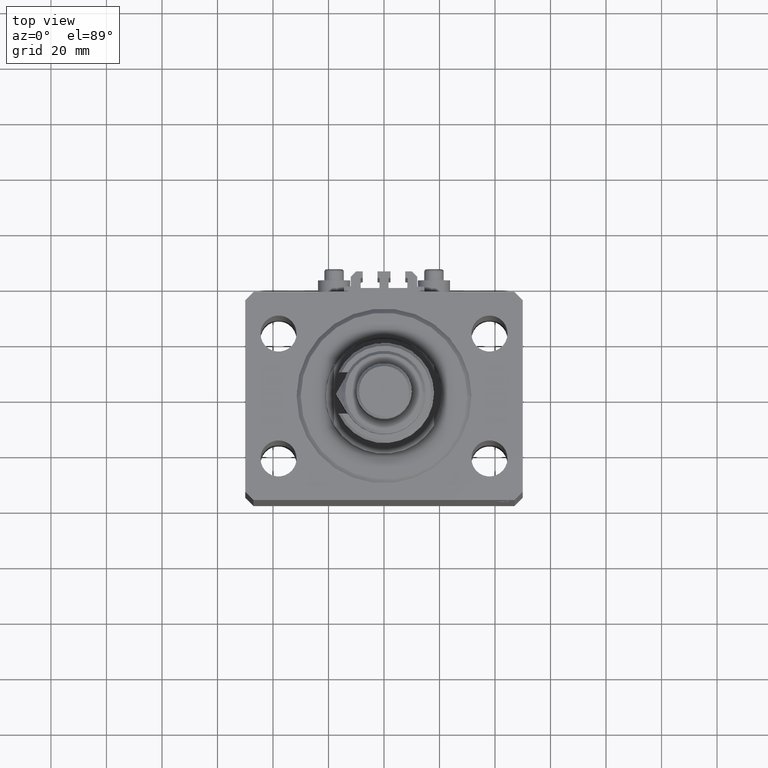
[diagram: clean part render]
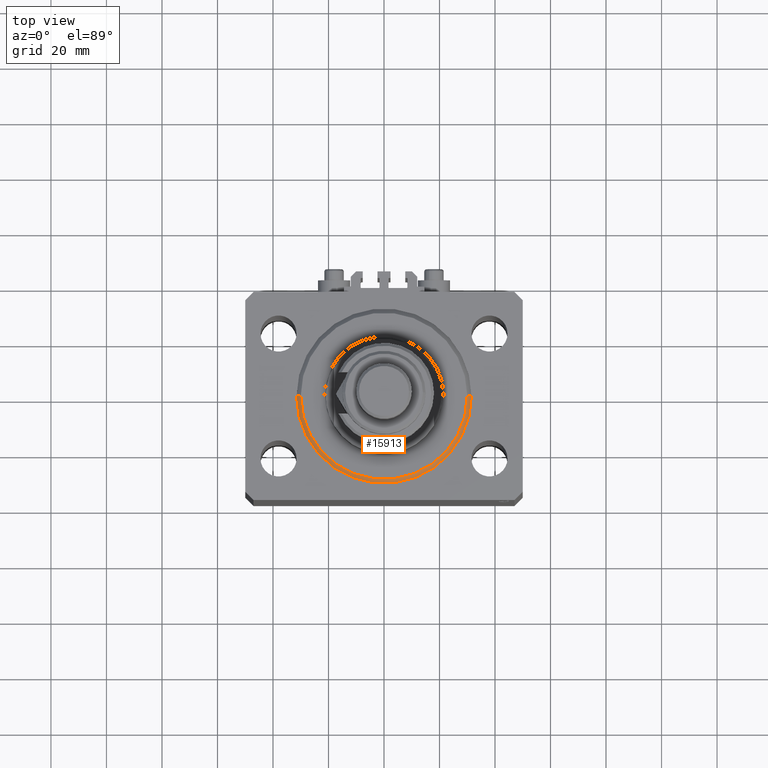
[diagram: same view with one face highlighted and labeled with its STEP entity id]
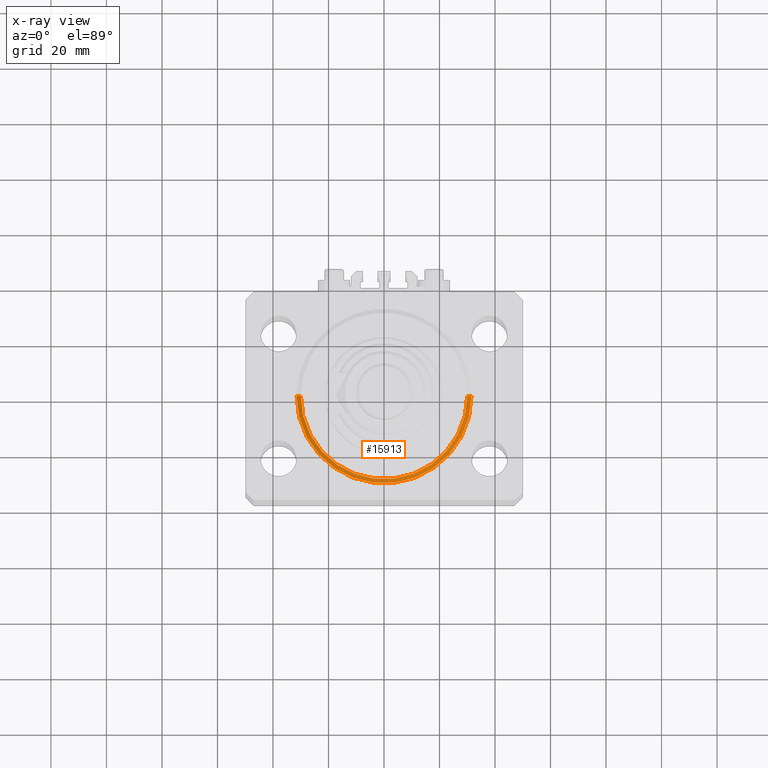
[diagram: x-ray of the same camera — body ghosted, the highlighted face saturated]
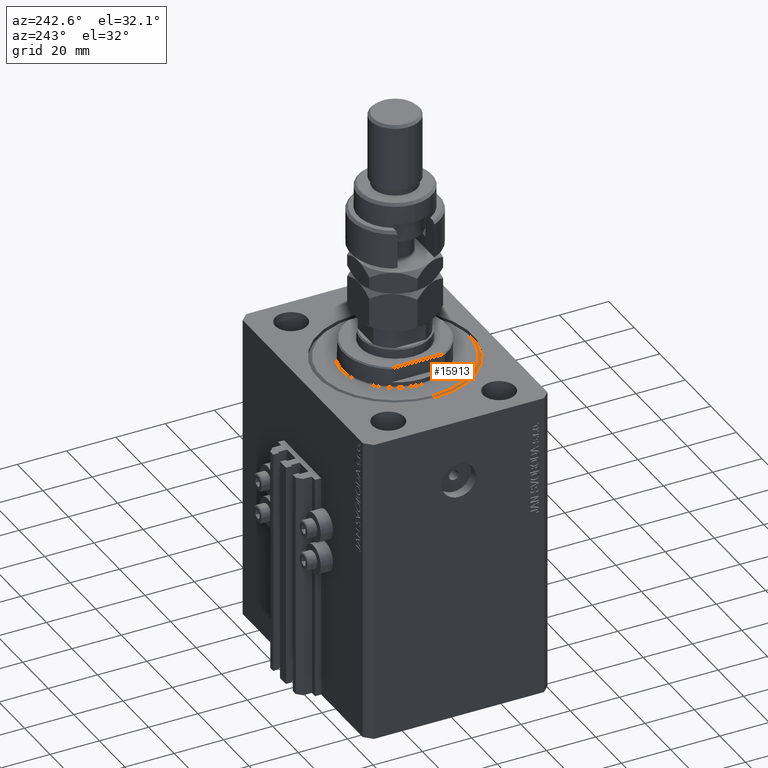
[diagram: same view with one face highlighted and labeled with its STEP entity id]
A machine part, top view. The second image highlights one B-rep face of the part: STEP entity #15913.
The next image is the same camera in x-ray: the body ghosted, the highlighted face saturated — about 0% of this face is hidden behind the body in this view.
A second angle (auxiliary view) of the same face is appended — the face is thin or edge-on in the first view.
In plain terms, the highlighted conical surface has half-angle 45 deg.
Its self-contained STEP definition (entity closure, byte-faithful):
#2330 = CARTESIAN_POINT ( 'NONE',  ( 0.000000000000000000, 0.000000000000000000, 1.499999999999980460 ) ) ;
#3320 = CARTESIAN_POINT ( 'NONE',  ( -31.50000000000000000, 0.000000000000000000, 1.499999999999980460 ) ) ;
#4499 = CARTESIAN_POINT ( 'NONE',  ( 31.50000000000000000, 0.000000000000000000, 1.499999999999980460 ) ) ;
#5014 = DIRECTION ( 'NONE',  ( 0.7071067811865474617, 0.000000000000000000, 0.7071067811865474617 ) ) ;
#6705 = CARTESIAN_POINT ( 'NONE',  ( 0.000000000000000000, 0.000000000000000000, 1.499999999999980460 ) ) ;
#6943 = ORIENTED_EDGE ( 'NONE', *, *, #38376, .T. ) ;
#7948 = EDGE_CURVE ( 'NONE', #41047, #14186, #28423, .T. ) ;
#8902 = CARTESIAN_POINT ( 'NONE',  ( 0.000000000000000000, 0.000000000000000000, 0.000000000000000000 ) ) ;
#9583 = CARTESIAN_POINT ( 'NONE',  ( 30.00000000000002132, 0.000000000000000000, 0.000000000000000000 ) ) ;
#9750 = DIRECTION ( 'NONE',  ( -0.000000000000000000, -0.000000000000000000, 1.000000000000000000 ) ) ;
#10691 = FACE_OUTER_BOUND ( 'NONE', #39961, .T. ) ;
#11577 = LINE ( 'NONE', #26322, #41954 ) ;
#12789 = AXIS2_PLACEMENT_3D ( 'NONE', #6705, #9750, #33121 ) ;
#14186 = VERTEX_POINT ( 'NONE', #38148 ) ;
#15913 = ADVANCED_FACE ( 'NONE', ( #10691 ), #20079, .T. ) ;
#16635 = ORIENTED_EDGE ( 'NONE', *, *, #35000, .F. ) ;
#20079 = CONICAL_SURFACE ( 'NONE', #46007, 31.50000000000000000, 0.7853981633974482790 ) ;
#20810 = VERTEX_POINT ( 'NONE', #3320 ) ;
#20939 = VECTOR ( 'NONE', #5014, 1000.000000000000114 ) ;
#21133 = AXIS2_PLACEMENT_3D ( 'NONE', #8902, #27702, #28201 ) ;
#21318 = ORIENTED_EDGE ( 'NONE', *, *, #7948, .F. ) ;
#25378 = ORIENTED_EDGE ( 'NONE', *, *, #32162, .F. ) ;
#26192 = DIRECTION ( 'NONE',  ( -0.000000000000000000, -0.000000000000000000, 1.000000000000000000 ) ) ;
#26322 = CARTESIAN_POINT ( 'NONE',  ( -31.50000000000000000, 3.857637417314162689E-15, 1.499999999999980460 ) ) ;
#27075 = DIRECTION ( 'NONE',  ( -0.7071067811865474617, 8.659560562354932858E-17, 0.7071067811865474617 ) ) ;
#27702 = DIRECTION ( 'NONE',  ( -0.000000000000000000, -0.000000000000000000, -1.000000000000000000 ) ) ;
#28201 = DIRECTION ( 'NONE',  ( 1.000000000000000000, 0.000000000000000000, 0.000000000000000000 ) ) ;
#28423 = CIRCLE ( 'NONE', #21133, 30.00000000000002132 ) ;
#32162 = EDGE_CURVE ( 'NONE', #14186, #20810, #11577, .T. ) ;
#32429 = LINE ( 'NONE', #4499, #20939 ) ;
#33121 = DIRECTION ( 'NONE',  ( 1.000000000000000000, 0.000000000000000000, 0.000000000000000000 ) ) ;
#35000 = EDGE_CURVE ( 'NONE', #20810, #41999, #49283, .T. ) ;
#36223 = CARTESIAN_POINT ( 'NONE',  ( 31.50000000000000000, 3.857637417314162689E-15, 1.499999999999980460 ) ) ;
#38148 = CARTESIAN_POINT ( 'NONE',  ( -30.00000000000002132, 3.765788907378112117E-15, 0.000000000000000000 ) ) ;
#38376 = EDGE_CURVE ( 'NONE', #41047, #41999, #32429, .T. ) ;
#39961 = EDGE_LOOP ( 'NONE', ( #25378, #21318, #6943, #16635 ) ) ;
#41047 = VERTEX_POINT ( 'NONE', #9583 ) ;
#41687 = DIRECTION ( 'NONE',  ( 1.000000000000000000, 0.000000000000000000, 0.000000000000000000 ) ) ;
#41954 = VECTOR ( 'NONE', #27075, 1000.000000000000114 ) ;
#41999 = VERTEX_POINT ( 'NONE', #36223 ) ;
#46007 = AXIS2_PLACEMENT_3D ( 'NONE', #2330, #26192, #41687 ) ;
#49283 = CIRCLE ( 'NONE', #12789, 31.50000000000000000 ) ;